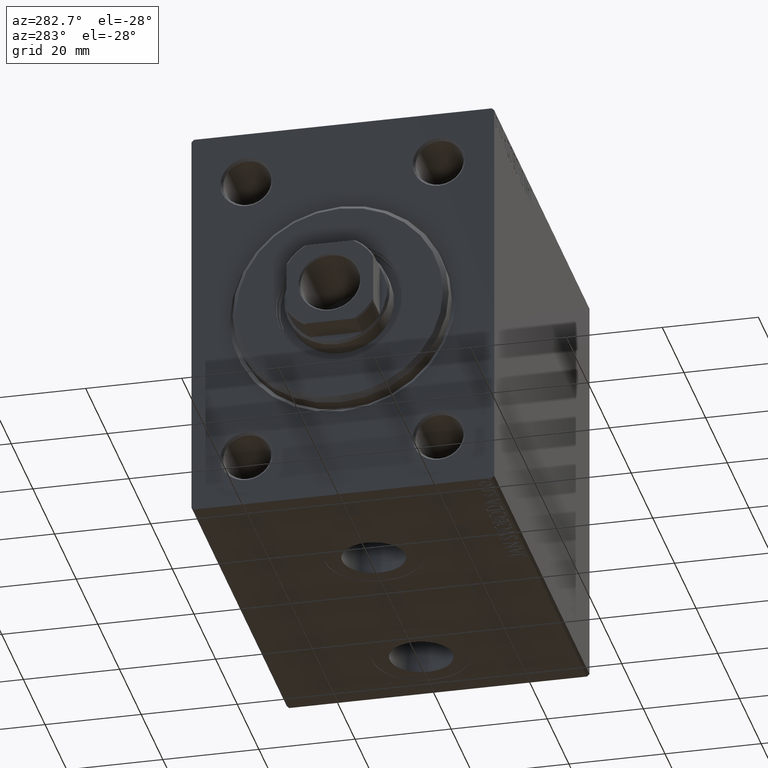
[diagram: clean part render]
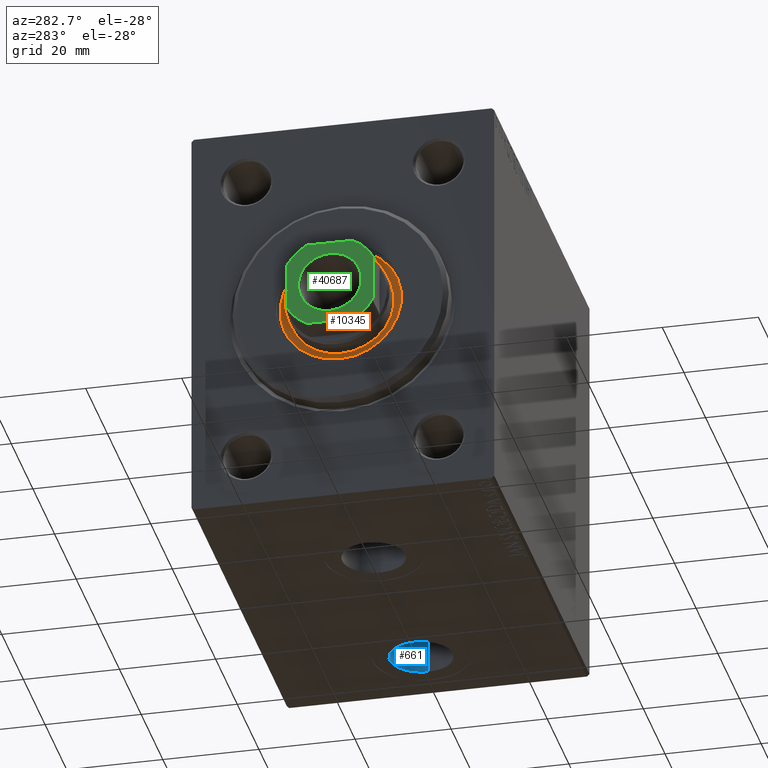
[diagram: same view with three faces highlighted in distinct colors, each labeled with its STEP entity id]
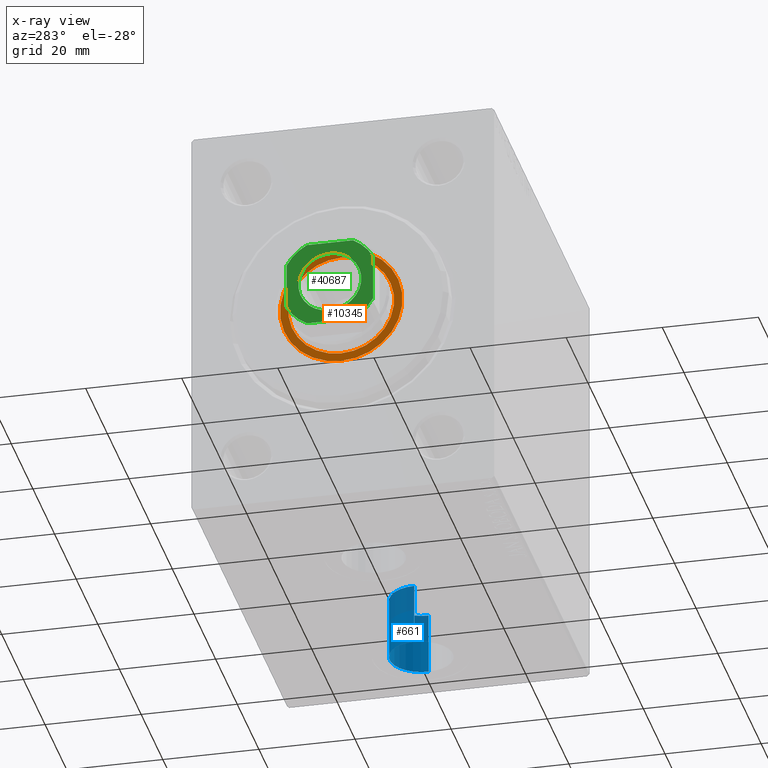
[diagram: x-ray of the same camera — body ghosted, the three highlighted faces saturated]
A machine part, auxiliary view with three faces highlighted in distinct colors.
The next image is the same camera in x-ray (body ghosted, the three faces saturated) — at least one of them is partly hidden behind the body in this view.
Their STEP definitions:

[orange] entity #10345 — the highlighted planar face has unit normal (-1, 0, 0).
#1096 = VERTEX_POINT ( 'NONE', #13691 ) ;
#1221 = CARTESIAN_POINT ( 'NONE',  ( 1.500000000000000000, 0.000000000000000000, 0.000000000000000000 ) ) ;
#1771 = VERTEX_POINT ( 'NONE', #10122 ) ;
#3599 = AXIS2_PLACEMENT_3D ( 'NONE', #32535, #4409, #18489 ) ;
#3687 = AXIS2_PLACEMENT_3D ( 'NONE', #22614, #12489, #26296 ) ;
#4239 = AXIS2_PLACEMENT_3D ( 'NONE', #7867, #14793, #21702 ) ;
#4409 = DIRECTION ( 'NONE',  ( 1.000000000000000000, 0.000000000000000000, 0.000000000000000000 ) ) ;
#5685 = VERTEX_POINT ( 'NONE', #7995 ) ;
#6455 = EDGE_CURVE ( 'NONE', #37277, #1771, #22743, .T. ) ;
#7867 = CARTESIAN_POINT ( 'NONE',  ( 1.499999999999999556, 0.000000000000000000, 0.000000000000000000 ) ) ;
#7995 = CARTESIAN_POINT ( 'NONE',  ( 1.499999999999999556, 0.000000000000000000, -11.00000000000000000 ) ) ;
#8784 = EDGE_CURVE ( 'NONE', #1771, #37277, #37546, .T. ) ;
#10122 = CARTESIAN_POINT ( 'NONE',  ( 1.500000000000000000, 0.000000000000000000, 12.75000000000000000 ) ) ;
#10345 = ADVANCED_FACE ( 'NONE', ( #39951, #31914 ), #43175, .T. ) ;
#12489 = DIRECTION ( 'NONE',  ( 1.000000000000000000, 0.000000000000000000, 0.000000000000000000 ) ) ;
#13691 = CARTESIAN_POINT ( 'NONE',  ( 1.499999999999999556, 1.347111479062088405E-15, 11.00000000000000000 ) ) ;
#14744 = AXIS2_PLACEMENT_3D ( 'NONE', #1221, #29354, #36033 ) ;
#14793 = DIRECTION ( 'NONE',  ( 1.000000000000000000, 0.000000000000000000, 0.000000000000000000 ) ) ;
#15376 = CIRCLE ( 'NONE', #3599, 11.00000000000000000 ) ;
#16298 = CARTESIAN_POINT ( 'NONE',  ( 1.500000000000000000, 1.561424668912874914E-15, -12.75000000000000000 ) ) ;
#18489 = DIRECTION ( 'NONE',  ( 0.000000000000000000, 0.000000000000000000, -1.000000000000000000 ) ) ;
#21702 = DIRECTION ( 'NONE',  ( 0.000000000000000000, 0.000000000000000000, -1.000000000000000000 ) ) ;
#21804 = DIRECTION ( 'NONE',  ( 1.000000000000000000, 0.000000000000000000, 0.000000000000000000 ) ) ;
#22614 = CARTESIAN_POINT ( 'NONE',  ( 1.500000000000000000, 0.000000000000000000, 0.000000000000000000 ) ) ;
#22743 = CIRCLE ( 'NONE', #32303, 12.75000000000000000 ) ;
#24141 = ORIENTED_EDGE ( 'NONE', *, *, #8784, .T. ) ;
#24147 = CIRCLE ( 'NONE', #4239, 11.00000000000000000 ) ;
#25994 = ORIENTED_EDGE ( 'NONE', *, *, #6455, .T. ) ;
#26296 = DIRECTION ( 'NONE',  ( 0.000000000000000000, 0.000000000000000000, -1.000000000000000000 ) ) ;
#28946 = CARTESIAN_POINT ( 'NONE',  ( 1.500000000000000000, 0.000000000000000000, 0.000000000000000000 ) ) ;
#29173 = DIRECTION ( 'NONE',  ( 0.000000000000000000, 0.000000000000000000, -1.000000000000000000 ) ) ;
#29354 = DIRECTION ( 'NONE',  ( 1.000000000000000000, 0.000000000000000000, 0.000000000000000000 ) ) ;
#31914 = FACE_OUTER_BOUND ( 'NONE', #45156, .T. ) ;
#32303 = AXIS2_PLACEMENT_3D ( 'NONE', #28946, #21804, #29173 ) ;
#32535 = CARTESIAN_POINT ( 'NONE',  ( 1.499999999999999556, 0.000000000000000000, 0.000000000000000000 ) ) ;
#32682 = EDGE_LOOP ( 'NONE', ( #38757, #32900 ) ) ;
#32900 = ORIENTED_EDGE ( 'NONE', *, *, #35695, .F. ) ;
#35695 = EDGE_CURVE ( 'NONE', #1096, #5685, #24147, .T. ) ;
#36033 = DIRECTION ( 'NONE',  ( 0.000000000000000000, 0.000000000000000000, -1.000000000000000000 ) ) ;
#37277 = VERTEX_POINT ( 'NONE', #16298 ) ;
#37546 = CIRCLE ( 'NONE', #3687, 12.75000000000000000 ) ;
#38757 = ORIENTED_EDGE ( 'NONE', *, *, #43355, .F. ) ;
#39951 = FACE_BOUND ( 'NONE', #32682, .T. ) ;
#43175 = PLANE ( 'NONE',  #14744 ) ;
#43355 = EDGE_CURVE ( 'NONE', #5685, #1096, #15376, .T. ) ;
#45156 = EDGE_LOOP ( 'NONE', ( #24141, #25994 ) ) ;

[blue] entity #661 — the highlighted cylindrical surface (edge-blend (fillet) strip) has radius 6.58 mm, axis along (-0, -0, -1).
#661 = ADVANCED_FACE ( 'NONE', ( #25124 ), #29254, .F. ) ;
#3717 = CIRCLE ( 'NONE', #36811, 6.580000000000002736 ) ;
#4354 = CARTESIAN_POINT ( 'NONE',  ( 72.50000000000001421, -7.523326685254106813E-15, -29.50000000000000711 ) ) ;
#4418 = EDGE_LOOP ( 'NONE', ( #25978, #22315, #37789, #32514 ) ) ;
#5749 = CARTESIAN_POINT ( 'NONE',  ( 79.08000000000001251, -6.717509091415147771E-15, -42.40000000000000568 ) ) ;
#9180 = AXIS2_PLACEMENT_3D ( 'NONE', #44809, #23386, #37431 ) ;
#9471 = CARTESIAN_POINT ( 'NONE',  ( 72.50000000000001421, -7.523326685254106813E-15, -29.50000000000000711 ) ) ;
#9562 = EDGE_CURVE ( 'NONE', #32215, #43506, #3717, .T. ) ;
#12135 = CARTESIAN_POINT ( 'NONE',  ( 79.08000000000001251, -6.717509091415147771E-15, -29.50000000000000711 ) ) ;
#12714 = DIRECTION ( 'NONE',  ( -1.000000000000000000, 0.000000000000000000, 0.000000000000000000 ) ) ;
#14584 = AXIS2_PLACEMENT_3D ( 'NONE', #4354, #43304, #39851 ) ;
#17905 = VERTEX_POINT ( 'NONE', #5749 ) ;
#21472 = CARTESIAN_POINT ( 'NONE',  ( 65.92000000000000171, -7.523326685254106813E-15, -29.50000000000000711 ) ) ;
#22315 = ORIENTED_EDGE ( 'NONE', *, *, #9562, .F. ) ;
#23074 = DIRECTION ( 'NONE',  ( 0.000000000000000000, 0.000000000000000000, -1.000000000000000000 ) ) ;
#23386 = DIRECTION ( 'NONE',  ( 0.000000000000000000, 0.000000000000000000, -1.000000000000000000 ) ) ;
#24393 = VERTEX_POINT ( 'NONE', #29571 ) ;
#25124 = FACE_OUTER_BOUND ( 'NONE', #4418, .T. ) ;
#25978 = ORIENTED_EDGE ( 'NONE', *, *, #35211, .F. ) ;
#26186 = LINE ( 'NONE', #12135, #43234 ) ;
#26944 = EDGE_CURVE ( 'NONE', #32215, #24393, #35734, .T. ) ;
#27930 = EDGE_CURVE ( 'NONE', #24393, #17905, #29032, .T. ) ;
#27940 = DIRECTION ( 'NONE',  ( -0.000000000000000000, -0.000000000000000000, -1.000000000000000000 ) ) ;
#29032 = CIRCLE ( 'NONE', #9180, 6.580000000000002736 ) ;
#29254 = CYLINDRICAL_SURFACE ( 'NONE', #14584, 6.580000000000002736 ) ;
#29571 = CARTESIAN_POINT ( 'NONE',  ( 65.92000000000000171, -7.523326685254106813E-15, -42.40000000000000568 ) ) ;
#32215 = VERTEX_POINT ( 'NONE', #33885 ) ;
#32514 = ORIENTED_EDGE ( 'NONE', *, *, #27930, .T. ) ;
#33885 = CARTESIAN_POINT ( 'NONE',  ( 65.92000000000000171, -7.523326685254106813E-15, -29.50000000000000711 ) ) ;
#35211 = EDGE_CURVE ( 'NONE', #43506, #17905, #26186, .T. ) ;
#35636 = DIRECTION ( 'NONE',  ( -0.000000000000000000, -0.000000000000000000, -1.000000000000000000 ) ) ;
#35734 = LINE ( 'NONE', #21472, #42299 ) ;
#36811 = AXIS2_PLACEMENT_3D ( 'NONE', #9471, #23074, #12714 ) ;
#37362 = CARTESIAN_POINT ( 'NONE',  ( 79.08000000000001251, -6.717509091415147771E-15, -29.50000000000000711 ) ) ;
#37431 = DIRECTION ( 'NONE',  ( -1.000000000000000000, 0.000000000000000000, 0.000000000000000000 ) ) ;
#37789 = ORIENTED_EDGE ( 'NONE', *, *, #26944, .T. ) ;
#39851 = DIRECTION ( 'NONE',  ( -1.000000000000000000, 0.000000000000000000, 0.000000000000000000 ) ) ;
#42299 = VECTOR ( 'NONE', #27940, 1000.000000000000000 ) ;
#43234 = VECTOR ( 'NONE', #35636, 1000.000000000000000 ) ;
#43304 = DIRECTION ( 'NONE',  ( -0.000000000000000000, -0.000000000000000000, -1.000000000000000000 ) ) ;
#43506 = VERTEX_POINT ( 'NONE', #37362 ) ;
#44809 = CARTESIAN_POINT ( 'NONE',  ( 72.50000000000001421, -7.523326685254106813E-15, -42.40000000000000568 ) ) ;

[green] entity #40687 — the highlighted planar face has unit normal (-1, 0, 0).
#346 = CARTESIAN_POINT ( 'NONE',  ( -4.800000000000012257, 8.999999999999998224, 88.00000000000000000 ) ) ;
#711 = EDGE_CURVE ( 'NONE', #38936, #43141, #40364, .T. ) ;
#2904 = EDGE_CURVE ( 'NONE', #21081, #22021, #35276, .T. ) ;
#3017 = CARTESIAN_POINT ( 'NONE',  ( 0.000000000000000000, 0.000000000000000000, 88.00000000000000000 ) ) ;
#4036 = DIRECTION ( 'NONE',  ( 1.000000000000000000, 0.000000000000000000, 0.000000000000000000 ) ) ;
#4059 = FACE_OUTER_BOUND ( 'NONE', #31288, .T. ) ;
#4495 = VERTEX_POINT ( 'NONE', #23033 ) ;
#4552 = CIRCLE ( 'NONE', #32629, 6.550000000000000711 ) ;
#5242 = DIRECTION ( 'NONE',  ( 0.000000000000000000, -0.000000000000000000, -1.000000000000000000 ) ) ;
#5438 = LINE ( 'NONE', #34029, #13355 ) ;
#5561 = CARTESIAN_POINT ( 'NONE',  ( 4.799999999999974065, -9.000000000000001776, 88.00000000000000000 ) ) ;
#5838 = CARTESIAN_POINT ( 'NONE',  ( -9.000000000000001776, 4.800000000000007816, 88.00000000000000000 ) ) ;
#5995 = DIRECTION ( 'NONE',  ( 1.000000000000000000, 0.000000000000000000, 0.000000000000000000 ) ) ;
#6844 = VERTEX_POINT ( 'NONE', #26341 ) ;
#6888 = ORIENTED_EDGE ( 'NONE', *, *, #2904, .T. ) ;
#7440 = DIRECTION ( 'NONE',  ( -1.927470528863119049E-16, 1.000000000000000000, -0.000000000000000000 ) ) ;
#7812 = VECTOR ( 'NONE', #24255, 1000.000000000000000 ) ;
#8713 = CARTESIAN_POINT ( 'NONE',  ( 0.000000000000000000, 0.000000000000000000, 88.00000000000000000 ) ) ;
#9135 = DIRECTION ( 'NONE',  ( -0.000000000000000000, 0.000000000000000000, 1.000000000000000000 ) ) ;
#9206 = DIRECTION ( 'NONE',  ( 1.000000000000000000, 0.000000000000000000, 0.000000000000000000 ) ) ;
#11724 = AXIS2_PLACEMENT_3D ( 'NONE', #21567, #35608, #4036 ) ;
#12015 = EDGE_CURVE ( 'NONE', #43141, #21081, #5438, .T. ) ;
#12635 = ORIENTED_EDGE ( 'NONE', *, *, #12015, .T. ) ;
#13011 = CARTESIAN_POINT ( 'NONE',  ( 4.799999999999979394, 8.999999999999998224, 88.00000000000000000 ) ) ;
#13355 = VECTOR ( 'NONE', #19290, 1000.000000000000000 ) ;
#13663 = VERTEX_POINT ( 'NONE', #32052 ) ;
#15405 = DIRECTION ( 'NONE',  ( 1.000000000000000000, 0.000000000000000000, 0.000000000000000000 ) ) ;
#16141 = VERTEX_POINT ( 'NONE', #5561 ) ;
#17392 = CIRCLE ( 'NONE', #40890, 6.550000000000000711 ) ;
#17577 = CIRCLE ( 'NONE', #33742, 10.19999999999997975 ) ;
#17740 = VERTEX_POINT ( 'NONE', #33731 ) ;
#18593 = FACE_BOUND ( 'NONE', #29170, .T. ) ;
#18781 = EDGE_CURVE ( 'NONE', #6844, #13663, #4552, .T. ) ;
#18857 = CARTESIAN_POINT ( 'NONE',  ( 8.999999999999998224, 4.799999999999978506, 88.00000000000000000 ) ) ;
#19290 = DIRECTION ( 'NONE',  ( -1.000000000000000000, -0.000000000000000000, -0.000000000000000000 ) ) ;
#19804 = CIRCLE ( 'NONE', #37455, 10.19999999999998863 ) ;
#20595 = AXIS2_PLACEMENT_3D ( 'NONE', #39322, #33323, #37002 ) ;
#20959 = ORIENTED_EDGE ( 'NONE', *, *, #39503, .T. ) ;
#21081 = VERTEX_POINT ( 'NONE', #346 ) ;
#21282 = CARTESIAN_POINT ( 'NONE',  ( 8.999999999999998224, 8.999999999999998224, 88.00000000000000000 ) ) ;
#21567 = CARTESIAN_POINT ( 'NONE',  ( 0.000000000000000000, 0.000000000000000000, 88.00000000000000000 ) ) ;
#22021 = VERTEX_POINT ( 'NONE', #5838 ) ;
#22136 = EDGE_CURVE ( 'NONE', #4495, #38936, #24734, .T. ) ;
#23033 = CARTESIAN_POINT ( 'NONE',  ( 9.000000000000001776, -4.799999999999974065, 88.00000000000000000 ) ) ;
#23195 = DIRECTION ( 'NONE',  ( 1.000000000000000000, 0.000000000000000000, 0.000000000000000000 ) ) ;
#24255 = DIRECTION ( 'NONE',  ( 1.927470528863119049E-16, -1.000000000000000000, 0.000000000000000000 ) ) ;
#24734 = LINE ( 'NONE', #21282, #29008 ) ;
#25026 = CARTESIAN_POINT ( 'NONE',  ( -4.799999999999956302, -9.000000000000001776, 88.00000000000000000 ) ) ;
#25272 = PLANE ( 'NONE',  #20595 ) ;
#25700 = VECTOR ( 'NONE', #5995, 1000.000000000000000 ) ;
#26316 = EDGE_CURVE ( 'NONE', #13663, #6844, #17392, .T. ) ;
#26341 = CARTESIAN_POINT ( 'NONE',  ( -6.550000000000000711, 8.021436534415164234E-16, 88.00000000000000000 ) ) ;
#26512 = CARTESIAN_POINT ( 'NONE',  ( -8.999999999999998224, -9.000000000000001776, 88.00000000000000000 ) ) ;
#26651 = CARTESIAN_POINT ( 'NONE',  ( 0.000000000000000000, 0.000000000000000000, 88.00000000000000000 ) ) ;
#26972 = LINE ( 'NONE', #26512, #25700 ) ;
#28354 = DIRECTION ( 'NONE',  ( 1.000000000000000000, 0.000000000000000000, 0.000000000000000000 ) ) ;
#28358 = ORIENTED_EDGE ( 'NONE', *, *, #42907, .T. ) ;
#29008 = VECTOR ( 'NONE', #7440, 1000.000000000000000 ) ;
#29170 = EDGE_LOOP ( 'NONE', ( #31087, #43048 ) ) ;
#29752 = ORIENTED_EDGE ( 'NONE', *, *, #36773, .T. ) ;
#30120 = EDGE_CURVE ( 'NONE', #22021, #17740, #30715, .T. ) ;
#30382 = CARTESIAN_POINT ( 'NONE',  ( 0.000000000000000000, 0.000000000000000000, 88.00000000000000000 ) ) ;
#30646 = VERTEX_POINT ( 'NONE', #25026 ) ;
#30715 = LINE ( 'NONE', #34161, #7812 ) ;
#31087 = ORIENTED_EDGE ( 'NONE', *, *, #26316, .T. ) ;
#31288 = EDGE_LOOP ( 'NONE', ( #39681, #45190, #12635, #6888, #41737, #29752, #20959, #28358 ) ) ;
#32052 = CARTESIAN_POINT ( 'NONE',  ( 6.550000000000000711, 0.000000000000000000, 88.00000000000000000 ) ) ;
#32277 = AXIS2_PLACEMENT_3D ( 'NONE', #43758, #40771, #9206 ) ;
#32629 = AXIS2_PLACEMENT_3D ( 'NONE', #8713, #5242, #15405 ) ;
#33140 = DIRECTION ( 'NONE',  ( 0.000000000000000000, -0.000000000000000000, -1.000000000000000000 ) ) ;
#33323 = DIRECTION ( 'NONE',  ( -0.000000000000000000, 0.000000000000000000, 1.000000000000000000 ) ) ;
#33731 = CARTESIAN_POINT ( 'NONE',  ( -8.999999999999998224, -4.799999999999960743, 88.00000000000000000 ) ) ;
#33742 = AXIS2_PLACEMENT_3D ( 'NONE', #3017, #38721, #28354 ) ;
#34029 = CARTESIAN_POINT ( 'NONE',  ( -9.000000000000001776, 8.999999999999998224, 88.00000000000000000 ) ) ;
#34161 = CARTESIAN_POINT ( 'NONE',  ( -9.000000000000001776, 8.999999999999998224, 88.00000000000000000 ) ) ;
#35276 = CIRCLE ( 'NONE', #11724, 10.20000000000000462 ) ;
#35608 = DIRECTION ( 'NONE',  ( -0.000000000000000000, 0.000000000000000000, 1.000000000000000000 ) ) ;
#36773 = EDGE_CURVE ( 'NONE', #17740, #30646, #17577, .T. ) ;
#37002 = DIRECTION ( 'NONE',  ( 1.000000000000000000, 0.000000000000000000, 0.000000000000000000 ) ) ;
#37455 = AXIS2_PLACEMENT_3D ( 'NONE', #26651, #9135, #23195 ) ;
#38721 = DIRECTION ( 'NONE',  ( -0.000000000000000000, 0.000000000000000000, 1.000000000000000000 ) ) ;
#38936 = VERTEX_POINT ( 'NONE', #18857 ) ;
#39322 = CARTESIAN_POINT ( 'NONE',  ( 0.000000000000000000, 0.000000000000000000, 88.00000000000000000 ) ) ;
#39503 = EDGE_CURVE ( 'NONE', #30646, #16141, #26972, .T. ) ;
#39681 = ORIENTED_EDGE ( 'NONE', *, *, #22136, .T. ) ;
#40364 = CIRCLE ( 'NONE', #32277, 10.19999999999998863 ) ;
#40687 = ADVANCED_FACE ( 'NONE', ( #18593, #4059 ), #25272, .T. ) ;
#40771 = DIRECTION ( 'NONE',  ( -0.000000000000000000, 0.000000000000000000, 1.000000000000000000 ) ) ;
#40890 = AXIS2_PLACEMENT_3D ( 'NONE', #30382, #33140, #44200 ) ;
#41737 = ORIENTED_EDGE ( 'NONE', *, *, #30120, .T. ) ;
#42907 = EDGE_CURVE ( 'NONE', #16141, #4495, #19804, .T. ) ;
#43048 = ORIENTED_EDGE ( 'NONE', *, *, #18781, .T. ) ;
#43141 = VERTEX_POINT ( 'NONE', #13011 ) ;
#43758 = CARTESIAN_POINT ( 'NONE',  ( 0.000000000000000000, 0.000000000000000000, 88.00000000000000000 ) ) ;
#44200 = DIRECTION ( 'NONE',  ( 1.000000000000000000, 0.000000000000000000, 0.000000000000000000 ) ) ;
#45190 = ORIENTED_EDGE ( 'NONE', *, *, #711, .T. ) ;